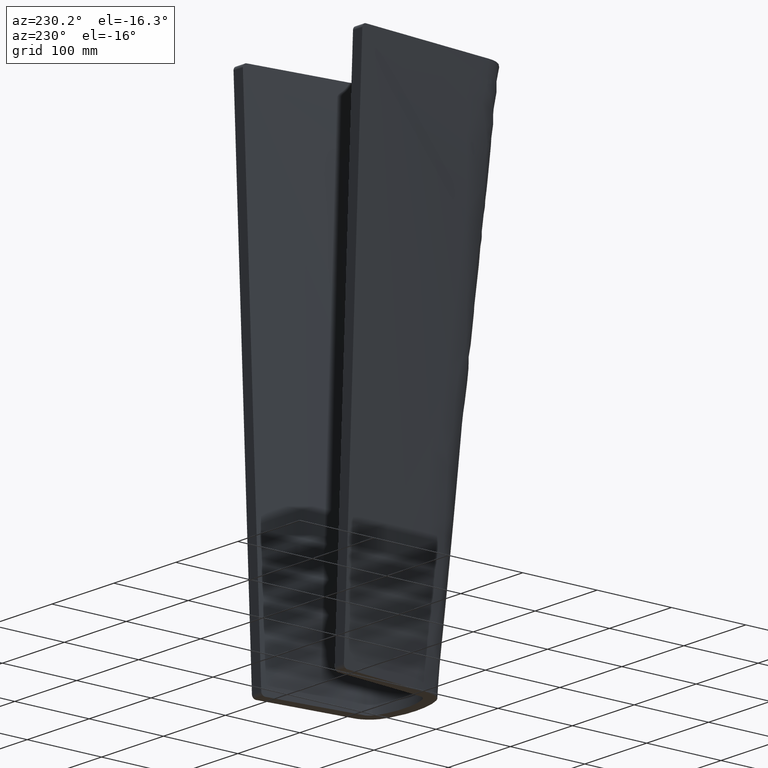
[diagram: clean part render]
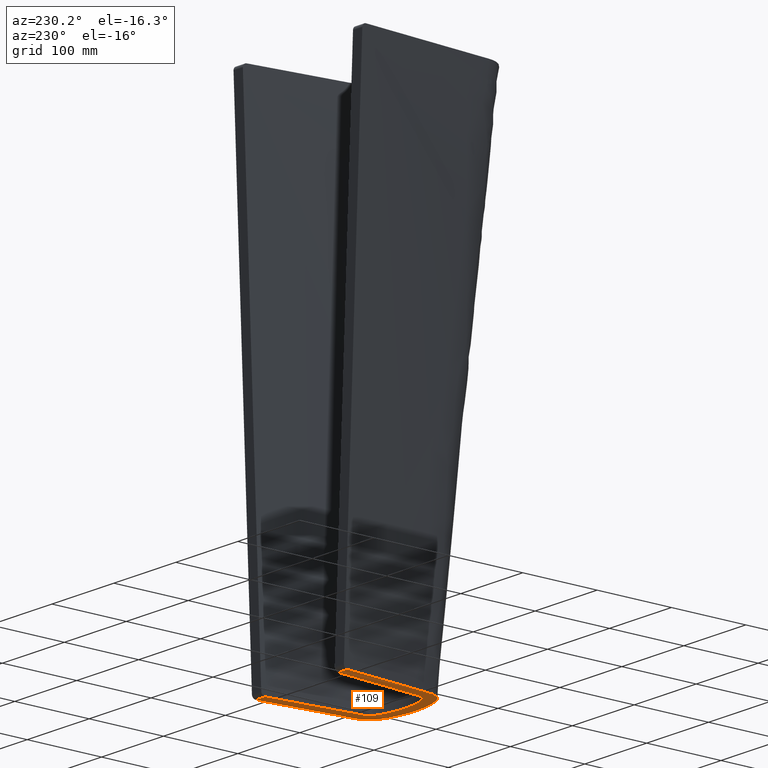
[diagram: same view with one face highlighted and labeled with its STEP entity id]
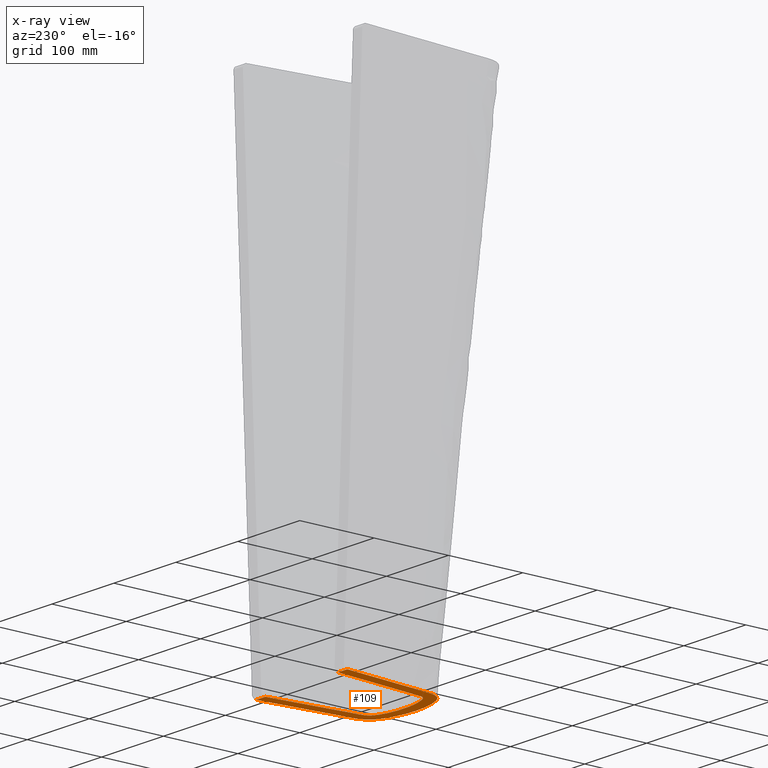
[diagram: x-ray of the same camera — body ghosted, the highlighted face saturated]
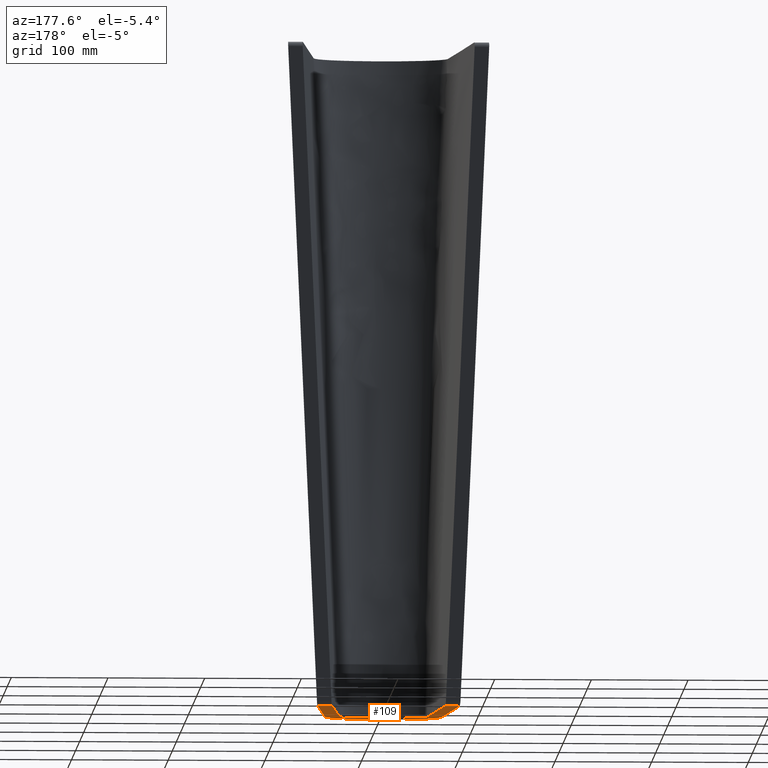
[diagram: same view with one face highlighted and labeled with its STEP entity id]
A machine part, auxiliary view. The second image highlights one B-rep face of the part: STEP entity #109.
The next image is the same camera in x-ray: the body ghosted, the highlighted face saturated — about 0% of this face is hidden behind the body in this view.
A second angle (auxiliary view) of the same face is appended — the face is thin or edge-on in the first view.
In plain terms, the highlighted planar face has unit normal (0, 0, -1).
Its self-contained STEP definition (entity closure, byte-faithful):
#109=ADVANCED_FACE('',(#123),#119,.T.);
#119=PLANE('',#264);
#123=FACE_OUTER_BOUND('',#133,.T.);
#133=EDGE_LOOP('',(#159,#160,#161,#162));
#143=LINE('',#343,#151);
#144=LINE('',#387,#152);
#151=VECTOR('',#274,1.);
#152=VECTOR('',#275,1.);
#159=ORIENTED_EDGE('',*,*,#223,.T.);
#160=ORIENTED_EDGE('',*,*,#224,.F.);
#161=ORIENTED_EDGE('',*,*,#225,.F.);
#162=ORIENTED_EDGE('',*,*,#226,.F.);
#207=VERTEX_POINT('',#341);
#208=VERTEX_POINT('',#342);
#209=VERTEX_POINT('',#344);
#210=VERTEX_POINT('',#386);
#223=EDGE_CURVE('',#207,#208,#247,.T.);
#224=EDGE_CURVE('',#209,#208,#143,.T.);
#225=EDGE_CURVE('',#210,#209,#248,.T.);
#226=EDGE_CURVE('',#207,#210,#144,.T.);
#247=B_SPLINE_CURVE_WITH_KNOTS('',3,(#299,#300,#301,#302,#303,#304,#305,
#306,#307,#308,#309,#310,#311,#312,#313,#314,#315,#316,#317,#318,#319,#320,
#321,#322,#323,#324,#325,#326,#327,#328,#329,#330,#331,#332,#333,#334,#335,
#336,#337,#338,#339,#340),.UNSPECIFIED.,.F.,.F.,(4,2,2,2,2,2,2,2,2,2,2,
2,2,2,2,2,2,2,2,2,4),(0.,0.250000000000004,0.312500000000006,0.343750000000007,
0.351562500000007,0.359375000000007,0.375000000000007,0.390625000000007,
0.406250000000007,0.437500000000007,0.500000000000007,0.562500000000007,
0.593750000000007,0.609375000000007,0.625000000000007,0.640625000000007,
0.648437500000007,0.656250000000006,0.687500000000005,0.750000000000004,
1.),.UNSPECIFIED.);
#248=B_SPLINE_CURVE_WITH_KNOTS('',3,(#345,#346,#347,#348,#349,#350,#351,
#352,#353,#354,#355,#356,#357,#358,#359,#360,#361,#362,#363,#364,#365,#366,
#367,#368,#369,#370,#371,#372,#373,#374,#375,#376,#377,#378,#379,#380,#381,
#382,#383,#384,#385),.UNSPECIFIED.,.F.,.F.,(4,1,1,1,1,1,1,1,1,1,1,1,1,1,
1,1,1,1,1,1,1,1,1,1,1,1,1,1,1,1,1,1,1,1,1,1,1,1,4),(0.,0.116670801739459,
0.244447193504246,0.260419242474845,0.276391291445443,0.284377315930742,
0.292363340416041,0.30833538938664,0.324307438357238,0.332293462842537,
0.340279487327837,0.348265511813136,0.356251536298435,0.372223585269033,
0.388195634239632,0.40416768321023,0.420139732180829,0.436111781151427,
0.468055879092624,0.49999997703382,0.531944074975017,0.563888172916214,
0.579860221886812,0.595832270857411,0.611804319828009,0.627776368798608,
0.643748417769206,0.651734442254505,0.659720466739804,0.667706491225104,
0.675692515710403,0.691664564681001,0.707636613651599,0.715622638136899,
0.723608662622198,0.739580711592796,0.755552760563395,0.883329152328182,
1.),.UNSPECIFIED.);
#264=AXIS2_PLACEMENT_3D('',#388,#276,#277);
#274=DIRECTION('',(-1.,0.,0.));
#275=DIRECTION('',(-1.,0.,0.));
#276=DIRECTION('',(0.,0.,-1.));
#277=DIRECTION('',(1.,0.,0.));
#299=CARTESIAN_POINT('',(-465.962197140676,-812.968381186061,-187.499999979997));
#300=CARTESIAN_POINT('',(-462.957667245817,-841.787120746506,-187.499999979997));
#301=CARTESIAN_POINT('',(-459.956154161615,-870.606174737309,-187.499999979996));
#302=CARTESIAN_POINT('',(-456.199536051339,-906.629499617752,-187.499999979996));
#303=CARTESIAN_POINT('',(-455.44917437446,-913.834264677765,-187.499999979997));
#304=CARTESIAN_POINT('',(-454.316038611123,-924.640621710636,-187.499999979997));
#305=CARTESIAN_POINT('',(-453.965619425589,-928.247611637374,-187.499999979997));
#306=CARTESIAN_POINT('',(-453.47577504107,-932.745571332579,-187.499999979997));
#307=CARTESIAN_POINT('',(-453.37949514838,-933.645477455978,-187.499999979997));
#308=CARTESIAN_POINT('',(-452.974924008311,-935.405851411342,-187.499999979997));
#309=CARTESIAN_POINT('',(-452.657010394228,-936.274622339021,-187.499999979996));
#310=CARTESIAN_POINT('',(-451.49115468713,-938.725026607287,-187.499999979996));
#311=CARTESIAN_POINT('',(-450.384815053252,-940.202404879901,-187.499999979997));
#312=CARTESIAN_POINT('',(-447.67035091923,-942.604276327525,-187.499999979997));
#313=CARTESIAN_POINT('',(-446.034379807098,-943.460818397316,-187.499999979996));
#314=CARTESIAN_POINT('',(-442.720881299545,-944.931214598023,-187.499999979997));
#315=CARTESIAN_POINT('',(-441.037284268509,-945.586556570981,-187.499999979996));
#316=CARTESIAN_POINT('',(-435.912101048391,-947.331310273773,-187.499999979996));
#317=CARTESIAN_POINT('',(-432.380694879385,-948.20132893739,-187.499999979997));
#318=CARTESIAN_POINT('',(-421.7002935847,-950.212608324211,-187.499999979997));
#319=CARTESIAN_POINT('',(-414.53248202224,-950.750826144219,-187.499999979997));
#320=CARTESIAN_POINT('',(-400.132186373929,-950.735464672076,-187.499999979997));
#321=CARTESIAN_POINT('',(-392.871097229387,-950.17070410138,-187.499999979998));
#322=CARTESIAN_POINT('',(-382.19180352065,-948.113437999192,-187.499999979998));
#323=CARTESIAN_POINT('',(-378.679124725714,-947.233359900683,-187.499999979996));
#324=CARTESIAN_POINT('',(-373.538086326015,-945.446212357435,-187.499999979996));
#325=CARTESIAN_POINT('',(-371.854566968685,-944.780951656669,-187.499999979998));
#326=CARTESIAN_POINT('',(-368.564497352652,-943.284227658902,-187.499999979998));
#327=CARTESIAN_POINT('',(-366.94823827691,-942.372260509009,-187.499999979996));
#328=CARTESIAN_POINT('',(-364.31079277795,-939.894249059945,-187.499999979996));
#329=CARTESIAN_POINT('',(-363.239594004123,-938.369782769558,-187.499999979996));
#330=CARTESIAN_POINT('',(-362.146603621163,-935.880924072405,-187.499999979996));
#331=CARTESIAN_POINT('',(-361.85856642577,-935.000090980731,-187.499999979995));
#332=CARTESIAN_POINT('',(-361.522168787193,-933.222514286111,-187.499999979995));
#333=CARTESIAN_POINT('',(-361.428887700002,-932.325066157722,-187.499999979997));
#334=CARTESIAN_POINT('',(-360.959980143159,-927.838114737278,-187.499999979997));
#335=CARTESIAN_POINT('',(-360.596169155727,-924.247245687256,-187.499999979997));
#336=CARTESIAN_POINT('',(-359.467085530438,-913.478990597648,-187.499999979997));
#337=CARTESIAN_POINT('',(-358.718689607801,-906.299655453491,-187.499999979997));
#338=CARTESIAN_POINT('',(-354.974791186289,-870.403277706762,-187.499999979997));
#339=CARTESIAN_POINT('',(-351.985030433695,-841.685616800886,-187.499999979996));
#340=CARTESIAN_POINT('',(-348.991190341358,-812.96838118606,-187.499999979996));
#341=CARTESIAN_POINT('',(-465.962197140676,-812.968381186061,-187.499999979997));
#342=CARTESIAN_POINT('',(-348.991190341358,-812.96838118606,-187.499999979997));
#343=CARTESIAN_POINT('',(-481.510479232172,-812.96838118606,-187.499999979997));
#344=CARTESIAN_POINT('',(-333.965053328038,-812.968381186053,-187.499999979995));
#345=CARTESIAN_POINT('',(-480.988339299375,-812.968381186072,-187.499999977795));
#346=CARTESIAN_POINT('',(-479.160086222613,-830.504863097711,-187.499999977647));
#347=CARTESIAN_POINT('',(-475.337282315882,-867.161274936592,-187.499999977418));
#348=CARTESIAN_POINT('',(-471.499101163816,-904.031735628332,-187.499999977311));
#349=CARTESIAN_POINT('',(-469.299388478992,-925.068356603149,-187.499999977276));
#350=CARTESIAN_POINT('',(-468.751013844615,-930.232258590686,-187.499999977269));
#351=CARTESIAN_POINT('',(-468.358119933075,-934.314941584154,-187.499999977265));
#352=CARTESIAN_POINT('',(-467.782771624124,-938.327307523754,-187.49999997726));
#353=CARTESIAN_POINT('',(-466.188966870687,-943.101224176674,-187.499999977256));
#354=CARTESIAN_POINT('',(-463.714737113447,-947.363651332985,-187.499999977253));
#355=CARTESIAN_POINT('',(-461.272989598694,-950.378789796676,-187.499999977251));
#356=CARTESIAN_POINT('',(-459.239636681243,-952.426464712457,-187.49999997725));
#357=CARTESIAN_POINT('',(-457.028688771037,-954.244143225862,-187.49999997725));
#358=CARTESIAN_POINT('',(-453.868640094342,-956.335479524349,-187.499999977249));
#359=CARTESIAN_POINT('',(-449.627373824587,-958.338299593767,-187.499999977249));
#360=CARTESIAN_POINT('',(-444.457621104176,-960.341785997172,-187.49999997725));
#361=CARTESIAN_POINT('',(-439.215719791301,-961.940719330081,-187.499999977251));
#362=CARTESIAN_POINT('',(-433.93641474848,-963.204426248655,-187.499999977253));
#363=CARTESIAN_POINT('',(-426.880952004902,-964.509287655462,-187.499999977256));
#364=CARTESIAN_POINT('',(-418.054113258737,-965.510289570531,-187.49999997726));
#365=CARTESIAN_POINT('',(-407.47597794209,-965.884432364477,-187.499999977264));
#366=CARTESIAN_POINT('',(-396.898040571948,-965.510298049321,-187.499999977267));
#367=CARTESIAN_POINT('',(-388.071489122787,-964.509033795327,-187.499999977269));
#368=CARTESIAN_POINT('',(-381.015930086901,-963.204410576133,-187.499999977269));
#369=CARTESIAN_POINT('',(-375.737428326976,-961.939627089599,-187.499999977269));
#370=CARTESIAN_POINT('',(-370.493305549956,-960.344164172543,-187.499999977269));
#371=CARTESIAN_POINT('',(-365.325728383943,-958.338346942769,-187.499999977269));
#372=CARTESIAN_POINT('',(-361.083292718412,-956.336818883523,-187.499999977268));
#373=CARTESIAN_POINT('',(-357.924591725161,-954.243915430927,-187.499999977267));
#374=CARTESIAN_POINT('',(-355.713312921138,-952.426313889384,-187.499999977267));
#375=CARTESIAN_POINT('',(-353.68043134474,-950.378472022442,-187.499999977267));
#376=CARTESIAN_POINT('',(-351.237621231232,-947.363510484659,-187.499999977266));
#377=CARTESIAN_POINT('',(-348.764485373282,-943.10098307583,-187.499999977265));
#378=CARTESIAN_POINT('',(-347.171823658887,-938.327142223051,-187.499999977264));
#379=CARTESIAN_POINT('',(-346.59527845765,-934.314924347883,-187.499999977264));
#380=CARTESIAN_POINT('',(-346.202352789346,-930.232309412005,-187.499999977263));
#381=CARTESIAN_POINT('',(-345.654320321554,-925.068358904184,-187.499999977262));
#382=CARTESIAN_POINT('',(-343.452987184745,-904.031969327017,-187.499999977259));
#383=CARTESIAN_POINT('',(-339.615487511753,-867.161917507294,-187.499999977253));
#384=CARTESIAN_POINT('',(-335.793265643769,-830.504959183981,-187.499999977257));
#385=CARTESIAN_POINT('',(-333.96505332792,-812.968381186065,-187.499999977262));
#386=CARTESIAN_POINT('',(-480.988339299256,-812.96838118606,-187.499999980794));
#387=CARTESIAN_POINT('',(-481.510479232172,-812.96838118606,-187.499999979997));
#388=CARTESIAN_POINT('',(-481.510479232172,-807.95988118606,-187.499999979997));